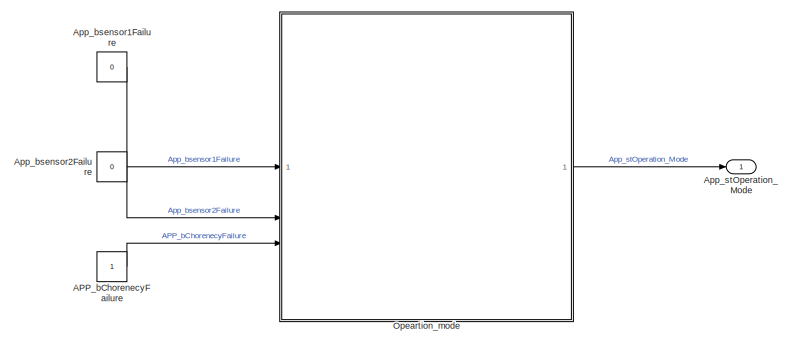
[diagram: root canvas - part 1/3, top left region]
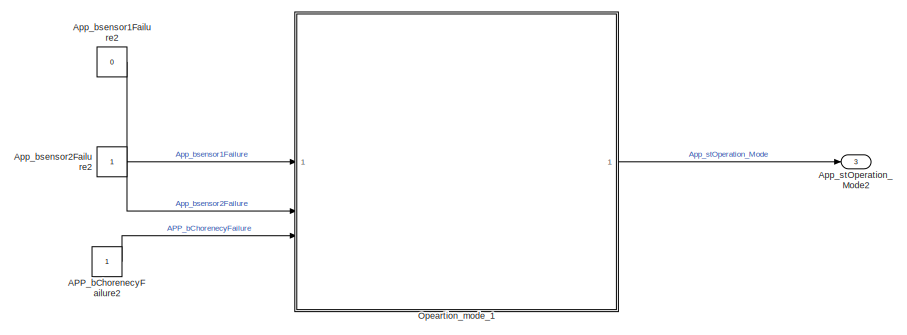
[diagram: root canvas - part 2/3, top right region]
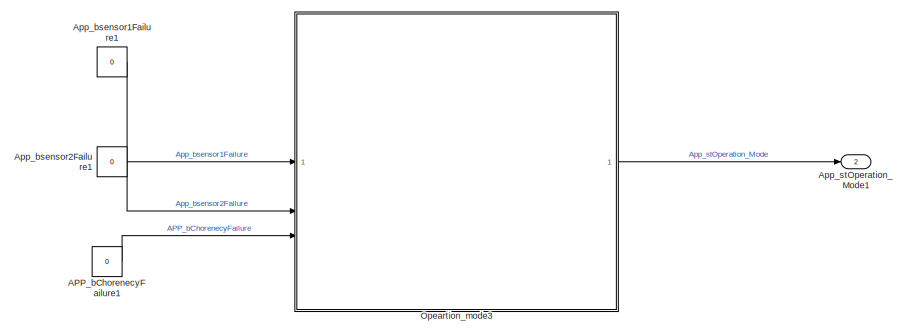
[diagram: root canvas - part 3/3, bottom center region]
MODEL slx_72ca9e2dc8bb
KIND model
CONFIG AbsTol = auto
CONFIG EnableMultiTasking = off
CONFIG FixedStep = auto
CONFIG MaxStep = auto
CONFIG MinStep = auto
CONFIG RelTol = 1e-3
CONFIG SampleTimeConstraint = Unconstrained
CONFIG SolverName = VariableStepAuto
CONFIG StartTime = 0.0
CONFIG StopTime = inf
BLOCK [Constant] APP_bChorenecyFailure
BLOCK [Constant] APP_bChorenecyFailure1
  Value = 0
BLOCK [Constant] APP_bChorenecyFailure2
BLOCK [Constant] App_bsensor1Failure
  Value = 0
BLOCK [Constant] App_bsensor1Failure1
  Value = 0
BLOCK [Constant] App_bsensor1Failure2
  Value = 0
BLOCK [Constant] App_bsensor2Failure
  Value = 0
BLOCK [Constant] App_bsensor2Failure1
  Value = 0
BLOCK [Constant] App_bsensor2Failure2
BLOCK [Outport] App_stOperation_Mode
BLOCK [Outport] App_stOperation_Mode1
  Port = 2
BLOCK [Outport] App_stOperation_Mode2
  Port = 3
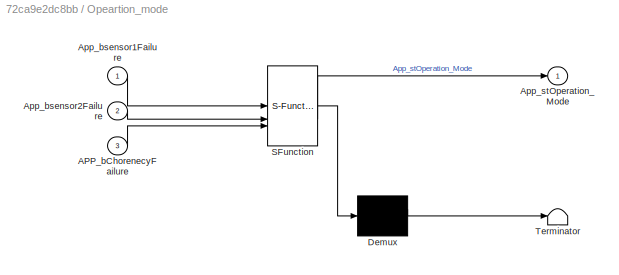
BLOCK [SubSystem] Opeartion_mode
  ErrorFcn = Stateflow.Translate.translate
  PermitHierarchicalResolution = ExplicitOnly
  SFBlockType = Chart
  TreatAsAtomicUnit = on
BLOCK [Demux] Opeartion_mode/ Demux 
  Outputs = 1
BLOCK [S-Function] Opeartion_mode/ SFunction 
  EnableBusSupport = on
  FunctionName = sf_sfun
  PortCounts = [3 2]
  SFcnIsStateOwnerBlock = off
  SFunctionDeploymentMode = off
  Tag = Stateflow S-Function 3
BLOCK [Terminator] Opeartion_mode/ Terminator 
BLOCK [Inport] Opeartion_mode/APP_bChorenecyFailure
  Port = 3
BLOCK [Inport] Opeartion_mode/App_bsensor1Failure
BLOCK [Inport] Opeartion_mode/App_bsensor2Failure
  Port = 2
BLOCK [Outport] Opeartion_mode/App_stOperation_Mode
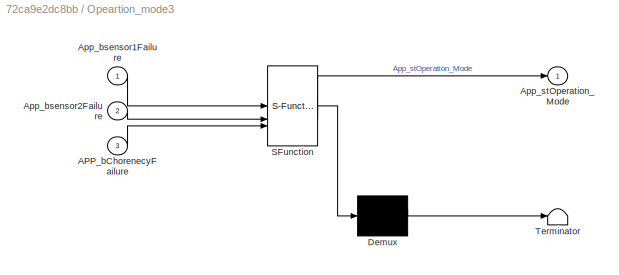
BLOCK [SubSystem] Opeartion_mode3
  ErrorFcn = Stateflow.Translate.translate
  PermitHierarchicalResolution = ExplicitOnly
  SFBlockType = Chart
  TreatAsAtomicUnit = on
BLOCK [Demux] Opeartion_mode3/ Demux 
  Outputs = 1
BLOCK [S-Function] Opeartion_mode3/ SFunction 
  EnableBusSupport = on
  FunctionName = sf_sfun
  PortCounts = [3 2]
  SFcnIsStateOwnerBlock = off
  SFunctionDeploymentMode = off
  Tag = Stateflow S-Function 1
BLOCK [Terminator] Opeartion_mode3/ Terminator 
BLOCK [Inport] Opeartion_mode3/APP_bChorenecyFailure
  Port = 3
BLOCK [Inport] Opeartion_mode3/App_bsensor1Failure
BLOCK [Inport] Opeartion_mode3/App_bsensor2Failure
  Port = 2
BLOCK [Outport] Opeartion_mode3/App_stOperation_Mode
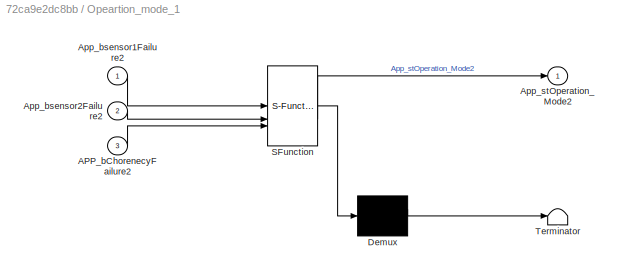
BLOCK [SubSystem] Opeartion_mode_1
  ErrorFcn = Stateflow.Translate.translate
  PermitHierarchicalResolution = ExplicitOnly
  SFBlockType = Chart
  TreatAsAtomicUnit = on
BLOCK [Demux] Opeartion_mode_1/ Demux 
  Outputs = 1
BLOCK [S-Function] Opeartion_mode_1/ SFunction 
  EnableBusSupport = on
  FunctionName = sf_sfun
  PortCounts = [3 2]
  SFcnIsStateOwnerBlock = off
  SFunctionDeploymentMode = off
  Tag = Stateflow S-Function 2
BLOCK [Terminator] Opeartion_mode_1/ Terminator 
BLOCK [Inport] Opeartion_mode_1/APP_bChorenecyFailure2
  Port = 3
BLOCK [Inport] Opeartion_mode_1/App_bsensor1Failure2
BLOCK [Inport] Opeartion_mode_1/App_bsensor2Failure2
  Port = 2
BLOCK [Outport] Opeartion_mode_1/App_stOperation_Mode2
LINE APP_bChorenecyFailure1:1 -> Opeartion_mode3:3
LINE APP_bChorenecyFailure2:1 -> Opeartion_mode_1:3
LINE APP_bChorenecyFailure:1 -> Opeartion_mode:3
LINE App_bsensor1Failure1:1 -> Opeartion_mode3:1
LINE App_bsensor1Failure2:1 -> Opeartion_mode_1:1
LINE App_bsensor1Failure:1 -> Opeartion_mode:1
LINE App_bsensor2Failure1:1 -> Opeartion_mode3:2
LINE App_bsensor2Failure2:1 -> Opeartion_mode_1:2
LINE App_bsensor2Failure:1 -> Opeartion_mode:2
LINE Opeartion_mode3:1 -> App_stOperation_Mode1:1
LINE Opeartion_mode:1 -> App_stOperation_Mode:1
LINE Opeartion_mode_1:1 -> App_stOperation_Mode2:1
CHART Opeartion_mode states=4 transitions=9
  STATE_LABEL 'Normal\nen:\nApp_stOperation_Mode=App_mode.Normal;'
  STATE_LABEL 'Downgraded_2\nen:\nApp_stOperation_Mode=App_mode.DowngradedS2;'
  STATE_LABEL 'Downgraded_1\nen:\nApp_stOperation_Mode=App_mode.DowngradedS1;'
  STATE_LABEL 'Failure\nen:\nApp_stOperation_Mode=App_mode.Failure;'
CHART Opeartion_mode3 states=5 transitions=9
  STATE_LABEL 'Modes'
  STATE_LABEL 'Normal\nen:\nApp_stOperation_Mode=App_mode.Normal;'
  STATE_LABEL 'Downgraded_2\nen:\nApp_stOperation_Mode=App_mode.DowngradedS2;'
  STATE_LABEL 'Downgraded_1\nen:\nApp_stOperation_Mode=App_mode.DowngradedS1;'
  STATE_LABEL 'Failure\nen:\nApp_stOperation_Mode=App_mode.Failure;'
  STATE_LABEL '[~APP_bChorenecyFailure]'
  STATE_LABEL '[App_bsensor1Failure&&~App_bsensor1Failure]'
  STATE_LABEL '[~App_bsensor1Failure&&App_bsensor2Failure]'
  STATE_LABEL 'Normal\nen:\nApp_stOperation_Mode=App_mode.Normal;'
  STATE_LABEL 'Downgraded_2\nen:\nApp_stOperation_Mode=App_mode.DowngradedS2;'
  STATE_LABEL 'Downgraded_1\nen:\nApp_stOperation_Mode=App_mode.DowngradedS1;'
  STATE_LABEL 'Failure\nen:\nApp_stOperation_Mode=App_mode.Failure;'
CHART Opeartion_mode_1 states=0 transitions=14
CHART  states=0 transitions=0
CHART  states=0 transitions=0
CHART  states=0 transitions=0
